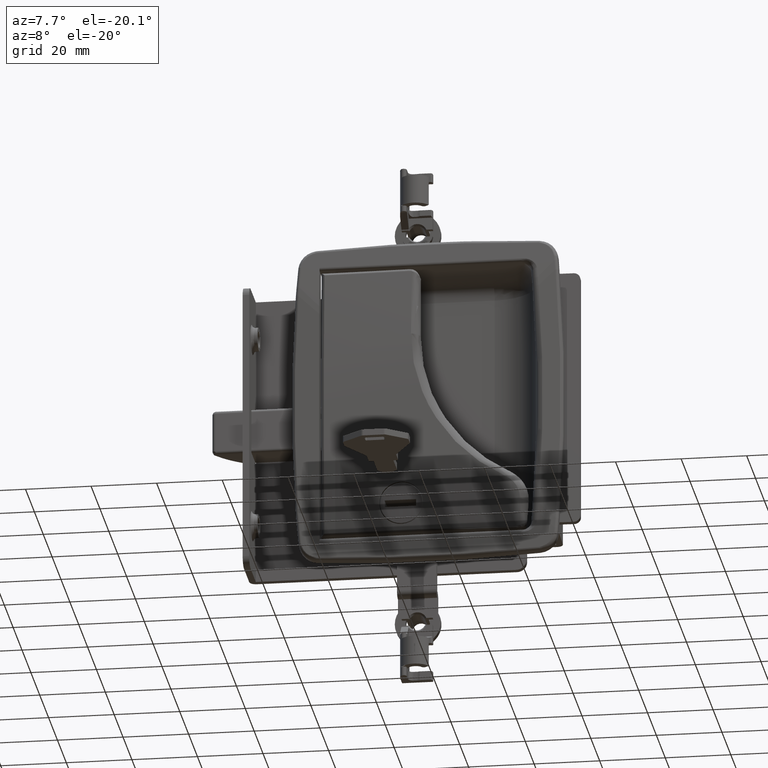
[diagram: clean part render]
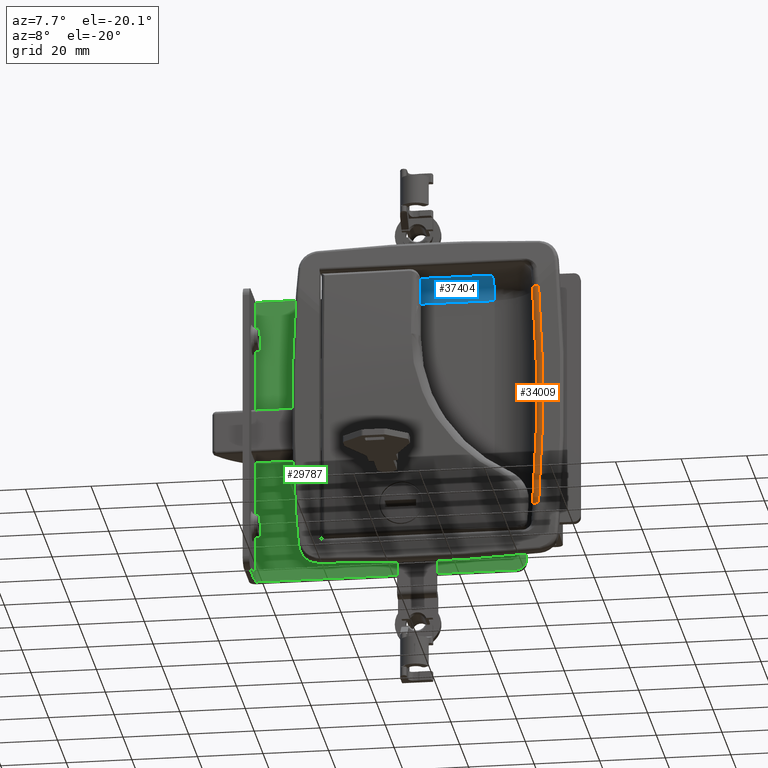
[diagram: same view with three faces highlighted in distinct colors, each labeled with its STEP entity id]
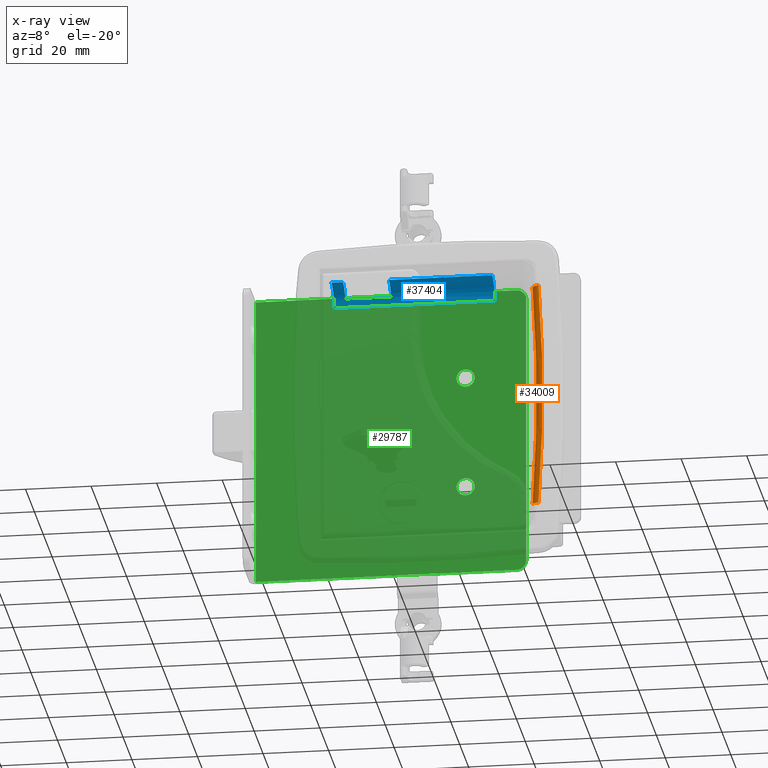
[diagram: x-ray of the same camera — body ghosted, the three highlighted faces saturated]
A machine part, auxiliary view with three faces highlighted in distinct colors.
The next image is the same camera in x-ray (body ghosted, the three faces saturated) — at least one of them is partly hidden behind the body in this view.
Their STEP definitions:

[orange] entity #34009 — the highlighted face is a freeform B-spline surface patch.
#33879=CARTESIAN_POINT('',(31.782126407912500,-30.614120764565900,34.878717808883003));
#33880=VERTEX_POINT('',#33879);
#33881=CARTESIAN_POINT('',(33.874876980734562,-32.611736803129652,35.018231881355803));
#33882=VERTEX_POINT('',#33881);
#33883=CARTESIAN_POINT('',(31.782126407912500,-30.614120764565900,34.878717808883003));
#33884=CARTESIAN_POINT('',(31.781894864028590,-30.884082462623741,34.877779072678663));
#33885=CARTESIAN_POINT('',(31.879180858453740,-31.356188596252800,34.882968690491118));
#33886=CARTESIAN_POINT('',(32.230178816195831,-31.921231894112641,34.905582124973037));
#33887=CARTESIAN_POINT('',(32.637989609936582,-32.281858589305990,34.932866888663924));
#33888=CARTESIAN_POINT('',(33.181714603839239,-32.558745499522857,34.969941941549628));
#33889=CARTESIAN_POINT('',(33.605888926483303,-32.625229594215547,34.999376142699496));
#33890=CARTESIAN_POINT('',(33.874876980734562,-32.611736803129652,35.018231881355803));
#33891=B_SPLINE_CURVE_WITH_KNOTS('',3,(#33883,#33884,#33885,#33886,#33887,#33888,#33889,#33890),.UNSPECIFIED.,.F.,.U.,(4,1,1,1,1,4),(0.000000333148975,0.809775829468428,1.417120800437435,1.973816289536203,2.429326822107407,3.239102318427517),.UNSPECIFIED.);
#33892=EDGE_CURVE('',#33880,#33882,#33891,.T.);
#33912=CARTESIAN_POINT('',(31.757733078547112,-30.600821732468276,35.227555349277630));
#33913=CARTESIAN_POINT('',(31.765863039972722,-30.600422756420897,35.111292591366528));
#33914=CARTESIAN_POINT('',(31.773993000708526,-30.600023780407323,34.995029843319500));
#33915=CARTESIAN_POINT('',(32.595115500203036,-30.559727376508832,23.252542840412893));
#33916=CARTESIAN_POINT('',(33.000116780710513,-30.538847907660045,11.626292120056570));
#33917=CARTESIAN_POINT('',(33.000080003498582,-30.538849773486223,-11.626182757576451));
#33918=CARTESIAN_POINT('',(32.595041945764741,-30.559731106623261,-23.252432193454673));
#33919=CARTESIAN_POINT('',(31.773882302008413,-30.600029211711128,-34.994916592511657));
#33920=CARTESIAN_POINT('',(31.765751973505228,-30.600428204568228,-35.111179314789240));
#33921=CARTESIAN_POINT('',(31.757621644312263,-30.600827197459211,-35.227442046931053));
#33922=CARTESIAN_POINT('',(31.757734885858010,-30.608058315501928,35.227529750894426));
#33923=CARTESIAN_POINT('',(31.765864818134897,-30.607659380405039,35.111267327439876));
#33924=CARTESIAN_POINT('',(31.773994750066379,-30.607260445325132,34.995004908925047));
#33925=CARTESIAN_POINT('',(32.595116114058868,-30.566968088669743,23.252525823425447));
#33926=CARTESIAN_POINT('',(33.000116780681275,-30.546090639515715,11.626283613736375));
#33927=CARTESIAN_POINT('',(33.000080003527835,-30.546092504954395,-11.626174250098989));
#33928=CARTESIAN_POINT('',(32.595042559727453,-30.566971818573037,-23.252415175352080));
#33929=CARTESIAN_POINT('',(31.773884051517989,-30.607265876080945,-34.994891657084423));
#33930=CARTESIAN_POINT('',(31.765753751820572,-30.607664828001038,-35.111154049828023));
#33931=CARTESIAN_POINT('',(31.757623451777718,-30.608063779938089,-35.227416447511381));
#33932=CARTESIAN_POINT('',(31.758261113539596,-32.715106067561599,35.220076369153176));
#33933=CARTESIAN_POINT('',(31.766382561910451,-32.714732093232101,35.103911282608451));
#33934=CARTESIAN_POINT('',(31.774504110095208,-32.714358114306393,34.987744768375954));
#33935=CARTESIAN_POINT('',(32.595294962052478,-32.676562551925151,23.247567893639125));
#33936=CARTESIAN_POINT('',(33.000116772159622,-32.656929320785295,11.623804511916383));
#33937=CARTESIAN_POINT('',(33.000080012050049,-32.656931073291602,-11.623694811002416));
#33938=CARTESIAN_POINT('',(32.595221438850004,-32.676566056929502,-23.247456921050663));
#33939=CARTESIAN_POINT('',(31.774393455684788,-32.714363208490667,-34.987631216427637));
#33940=CARTESIAN_POINT('',(31.766271540147770,-32.714737203138533,-35.103797704379552));
#33941=CARTESIAN_POINT('',(31.758149724430236,-32.715111193189955,-35.219962764629017));
#33942=CARTESIAN_POINT('',(33.857527520980526,-32.612584899746544,35.368924063883370));
#33943=CARTESIAN_POINT('',(33.865711958393241,-32.612184851253041,35.252194981271025));
#33944=CARTESIAN_POINT('',(33.873896395459624,-32.611784802776491,35.135465903598309));
#33945=CARTESIAN_POINT('',(34.700522773472663,-32.571379992948273,23.345854241498877));
#33946=CARTESIAN_POINT('',(35.108238655436978,-32.550444374911201,11.672946124043206));
#33947=CARTESIAN_POINT('',(35.108201632892090,-32.550446245342997,-11.672843108742027));
#33948=CARTESIAN_POINT('',(34.700448726064877,-32.571383734063062,-23.345749936704003));
#33949=CARTESIAN_POINT('',(33.873784954755756,-32.611790248680300,-35.135358984548219));
#33950=CARTESIAN_POINT('',(33.865600147457329,-32.612190314036049,-35.252088036345938));
#33951=CARTESIAN_POINT('',(33.857415339812547,-32.612590379408708,-35.368817093083308));
#33952=CARTESIAN_POINT('',(33.864708573823499,-32.612234201082970,35.369433233733218));
#33953=CARTESIAN_POINT('',(33.872893182273231,-32.611834065566846,35.252702218696292));
#33954=CARTESIAN_POINT('',(33.881077790031370,-32.611433930084544,35.135971213523476));
#33955=CARTESIAN_POINT('',(34.707719629381295,-32.571020419643702,23.346190239664733));
#33956=CARTESIAN_POINT('',(35.115443166048976,-32.550080462402811,11.673114065597661));
#33957=CARTESIAN_POINT('',(35.115406142607206,-32.550082333237611,-11.673011073144584));
#33958=CARTESIAN_POINT('',(34.707645580738863,-32.571024161537792,-23.346085957690153));
#33959=CARTESIAN_POINT('',(33.880966347241127,-32.611439377162000,-35.135864317204998));
#33960=CARTESIAN_POINT('',(33.872781369241522,-32.611839529527437,-35.252595296504545));
#33961=CARTESIAN_POINT('',(33.864596390550282,-32.612239681926695,-35.369326285668265));
#33969=(BOUNDED_SURFACE()B_SPLINE_SURFACE(3,2,((#33912,#33922,#33932,#33942,#33952),(#33913,#33923,#33933,#33943,#33953),(#33914,#33924,#33934,#33944,#33954),(#33915,#33925,#33935,#33945,#33955),(#33916,#33926,#33936,#33946,#33956),(#33917,#33927,#33937,#33947,#33957),(#33918,#33928,#33938,#33948,#33958),(#33919,#33929,#33939,#33949,#33959),(#33920,#33930,#33940,#33950,#33960),(#33921,#33931,#33941,#33951,#33961)),.UNSPECIFIED.,.F.,.F.,.U.)B_SPLINE_SURFACE_WITH_KNOTS((4,2,2,2,4),(3,1,1,3),(0.0,0.351054854494946,35.456541088595472,70.562027322695997,70.913082177209404),(0.0,0.017230395234583,3.449360058423087,3.466521053357058),.UNSPECIFIED.)GEOMETRIC_REPRESENTATION_ITEM()RATIONAL_B_SPLINE_SURFACE(((1.003115718963629,1.001557859481814,0.689689315548435,1.001551584761190,1.003103169522379),(1.003115761517329,1.001557880758665,0.689685077403687,1.001551605952342,1.003103211904683),(1.003115804071030,1.001557902035515,0.689680839258939,1.001551627143493,1.003103254286986),(1.003120101994886,1.001560050997443,0.689252786629928,1.001553767449868,1.003107534899736),(1.003122237279550,1.001561118639775,0.689040122505518,1.001554830791968,1.003109661583935),(1.003122237279550,1.001561118639775,0.689040122505518,1.001554830791968,1.003109661583935),(1.003120101462570,1.001560050731285,0.689252839646093,1.001553767184782,1.003107534369564),(1.003115803493260,1.001557901746630,0.689680896802018,1.001551626855772,1.003103253711544),(1.003115760939110,1.001557880469555,0.689685134991587,1.001551605664396,1.003103211328792),(1.003115718384959,1.001557859192480,0.689689373181156,1.001551584473020,1.003103168946040)))REPRESENTATION_ITEM('')SURFACE());
#33970=CARTESIAN_POINT('',(31.782016077280101,-30.614126177927400,-34.878604581789197));
#33971=VERTEX_POINT('',#33970);
#33972=CARTESIAN_POINT('',(33.874765912351599,-32.611742230980703,-35.018124965368649));
#33973=VERTEX_POINT('',#33972);
#33974=CARTESIAN_POINT('',(31.782016077280101,-30.614126177927400,-34.878604581789197));
#33975=CARTESIAN_POINT('',(31.782018567871560,-30.799685201004799,-34.877970614888071));
#33976=CARTESIAN_POINT('',(31.841023640632759,-31.221476959691628,-34.880655414839971));
#33977=CARTESIAN_POINT('',(32.089237416559762,-31.729231649051339,-34.896277909726543));
#33978=CARTESIAN_POINT('',(32.474616456101032,-32.157367141575719,-34.921764543587557));
#33979=CARTESIAN_POINT('',(32.843910727555787,-32.401957433099277,-34.946753619559637));
#33980=CARTESIAN_POINT('',(33.334368600425549,-32.584800640239877,-34.980426752069967));
#33981=CARTESIAN_POINT('',(33.656242009024517,-32.622573746252549,-35.002806450725451));
#33982=CARTESIAN_POINT('',(33.874765912351599,-32.611742230980703,-35.018124965368649));
#33983=B_SPLINE_CURVE_WITH_KNOTS('',3,(#33974,#33975,#33976,#33977,#33978,#33979,#33980,#33981,#33982),.UNSPECIFIED.,.F.,.U.,(4,1,1,1,1,1,4),(0.000000333147387,0.556716542780927,1.265286237955772,1.670117247749265,2.277482662979206,2.581170504776201,3.239102000787983),.UNSPECIFIED.);
#33984=EDGE_CURVE('',#33971,#33973,#33983,.T.);
#33985=ORIENTED_EDGE('',*,*,#33984,.T.);
#33986=CARTESIAN_POINT('',(33.874876980734562,-32.611736803129652,35.018231881355803));
#33987=CARTESIAN_POINT('',(34.284090715167210,-32.591738721478293,29.181868160271669));
#33988=CARTESIAN_POINT('',(34.896970149765657,-32.561157843210012,17.509141044805538));
#33989=CARTESIAN_POINT('',(35.203018654547677,-32.545635908212823,0.000051346525180));
#33990=CARTESIAN_POINT('',(34.896914157217402,-32.561160373405272,-17.509037378544871));
#33991=CARTESIAN_POINT('',(34.283998157478003,-32.591743305590633,-29.181762545342309));
#33992=CARTESIAN_POINT('',(33.874765912351599,-32.611742230980703,-35.018124965368649));
#33993=B_SPLINE_CURVE_WITH_KNOTS('',3,(#33986,#33987,#33988,#33989,#33990,#33991,#33992),.UNSPECIFIED.,.F.,.U.,(4,1,1,1,4),(0.0,0.250000000000000,0.500000000000000,0.750000000000000,1.0),.UNSPECIFIED.);
#33994=EDGE_CURVE('',#33882,#33973,#33993,.T.);
#33995=ORIENTED_EDGE('',*,*,#33994,.F.);
#33996=ORIENTED_EDGE('',*,*,#33892,.F.);
#33997=CARTESIAN_POINT('',(31.782016077280101,-30.614126177927400,-34.878604581789197));
#33998=CARTESIAN_POINT('',(32.188530068118489,-30.594180626119080,-29.065495027056581));
#33999=CARTESIAN_POINT('',(32.797375333539591,-30.563679588622701,-17.439275593920101));
#34000=CARTESIAN_POINT('',(33.101446129976033,-30.548196281243150,0.000054521661077));
#34001=CARTESIAN_POINT('',(32.797430044920581,-30.563676516703829,17.439385601416699));
#34002=CARTESIAN_POINT('',(32.188622010528583,-30.594176054264420,29.065606965170261));
#34003=CARTESIAN_POINT('',(31.782126407912500,-30.614120764565900,34.878717808883003));
#34004=B_SPLINE_CURVE_WITH_KNOTS('',3,(#33997,#33998,#33999,#34000,#34001,#34002,#34003),.UNSPECIFIED.,.F.,.U.,(4,1,1,1,4),(0.0,0.250000000000000,0.500000000000000,0.750000000000000,1.0),.UNSPECIFIED.);
#34005=EDGE_CURVE('',#33971,#33880,#34004,.T.);
#34006=ORIENTED_EDGE('',*,*,#34005,.F.);
#34007=EDGE_LOOP('',(#33985,#33995,#33996,#34006));
#34008=FACE_OUTER_BOUND('',#34007,.T.);
#34009=ADVANCED_FACE('',(#34008),#33969,.T.);

[blue] entity #37404 — the highlighted face is a freeform B-spline surface patch.
#37304=CARTESIAN_POINT('',(-32.225054412782477,-20.461716324192022,43.494289329491153));
#37305=CARTESIAN_POINT('',(19.257857284401450,-20.461716324192022,43.494289329491153));
#37306=CARTESIAN_POINT('',(-32.225054412782484,-13.743638370679678,43.787606947474373));
#37307=CARTESIAN_POINT('',(19.257857284401453,-13.743638370679678,43.787606947474373));
#37308=CARTESIAN_POINT('',(-32.225054412782484,-14.214742523254632,37.079651410061018));
#37309=CARTESIAN_POINT('',(19.257857284401453,-14.214742523254632,37.079651410061018));
#37317=(BOUNDED_SURFACE()B_SPLINE_SURFACE(1,2,((#37304,#37306,#37308),(#37305,#37307,#37309)),.UNSPECIFIED.,.F.,.F.,.U.)B_SPLINE_SURFACE_WITH_KNOTS((2,2),(3,3),(0.0,51.482911697183937),(0.0,10.750455284418120),.UNSPECIFIED.)GEOMETRIC_REPRESENTATION_ITEM()RATIONAL_B_SPLINE_SURFACE(((1.0,0.664513897122593,0.996233564052403),(1.0,0.664513897122593,0.996233564052403)))REPRESENTATION_ITEM('')SURFACE());
#37318=CARTESIAN_POINT('',(-31.0,-14.199999999999999,37.500000000000000));
#37319=VERTEX_POINT('',#37318);
#37320=CARTESIAN_POINT('',(-31.0,-20.199999999999999,43.500000000000000));
#37321=VERTEX_POINT('',#37320);
#37322=CARTESIAN_POINT('',(-31.0,-14.199999999999999,37.500000000000000));
#37323=CARTESIAN_POINT('',(-31.000000000000021,-14.199728251642281,38.113621233621153));
#37324=CARTESIAN_POINT('',(-30.999999999999950,-14.386062340086330,39.316113798223761));
#37325=CARTESIAN_POINT('',(-31.000000000000050,-15.104214037720320,40.787727624338423));
#37326=CARTESIAN_POINT('',(-30.999999999999940,-15.968653909058339,41.801940038035220));
#37327=CARTESIAN_POINT('',(-30.999999999999869,-16.772034911657649,42.453048144254652));
#37328=CARTESIAN_POINT('',(-31.000000000000639,-17.601286720186209,42.936354608749610));
#37329=CARTESIAN_POINT('',(-30.999999999999609,-18.727483032775531,43.370849119208842));
#37330=CARTESIAN_POINT('',(-31.000000000000270,-19.635468547866950,43.500224395093653));
#37331=CARTESIAN_POINT('',(-31.0,-20.199999999999999,43.500000000000000));
#37332=B_SPLINE_CURVE_WITH_KNOTS('',3,(#37322,#37323,#37324,#37325,#37326,#37327,#37328,#37329,#37330,#37331),.UNSPECIFIED.,.F.,.U.,(4,1,1,1,1,1,1,4),(0.000000173653319,1.840788138211531,3.607974898320732,4.859641520650031,5.816868614348634,6.700460490495598,7.731316819215510,9.424837097263424),.UNSPECIFIED.);
#37333=EDGE_CURVE('',#37319,#37321,#37332,.T.);
#37334=ORIENTED_EDGE('',*,*,#37333,.F.);
#37335=CARTESIAN_POINT('',(18.002176511299400,-14.199999999999999,37.500000000000000));
#37336=VERTEX_POINT('',#37335);
#37337=CARTESIAN_POINT('',(18.002176511299400,-14.199999999999999,37.500000000000000));
#37338=CARTESIAN_POINT('',(-31.0,-14.199999999999999,37.500000000000000));
#37339=QUASI_UNIFORM_CURVE('',1,(#37337,#37338),.UNSPECIFIED.,.F.,.U.);
#37340=EDGE_CURVE('',#37336,#37319,#37339,.T.);
#37341=ORIENTED_EDGE('',*,*,#37340,.F.);
#37342=CARTESIAN_POINT('',(18.002176511299400,-20.199999999999999,43.500000000000000));
#37343=VERTEX_POINT('',#37342);
#37344=CARTESIAN_POINT('',(18.002176511299400,-14.199999999999999,37.500000000000000));
#37345=CARTESIAN_POINT('',(18.002176511299400,-14.199728252037820,38.113621233852008));
#37346=CARTESIAN_POINT('',(18.002176511299400,-14.386062337492181,39.316113796709331));
#37347=CARTESIAN_POINT('',(18.002176511299439,-15.104214045254560,40.787727628736171));
#37348=CARTESIAN_POINT('',(18.002176511299350,-15.968653895676800,41.801940030253817));
#37349=CARTESIAN_POINT('',(18.002176511299339,-16.772034909962571,42.453048142346042));
#37350=CARTESIAN_POINT('',(18.002176511299780,-17.601286830185419,42.936354677976013));
#37351=CARTESIAN_POINT('',(18.002176511299162,-18.727482721819879,43.370848939787827));
#37352=CARTESIAN_POINT('',(18.002176511299549,-19.635468979204720,43.500224652217419));
#37353=CARTESIAN_POINT('',(18.002176511299400,-20.199999999999999,43.500000000000000));
#37354=B_SPLINE_CURVE_WITH_KNOTS('',3,(#37344,#37345,#37346,#37347,#37348,#37349,#37350,#37351,#37352,#37353),.UNSPECIFIED.,.F.,.U.,(4,1,1,1,1,1,1,4),(0.000000173653319,1.840788138211531,3.607974898320732,4.859641520650031,5.816868614348634,6.700460490495598,7.731316819215510,9.424837097263424),.UNSPECIFIED.);
#37355=EDGE_CURVE('',#37336,#37343,#37354,.T.);
#37356=ORIENTED_EDGE('',*,*,#37355,.T.);
#37357=CARTESIAN_POINT('',(-13.500000000000000,-20.199999999999999,43.500000000000000));
#37358=VERTEX_POINT('',#37357);
#37359=CARTESIAN_POINT('',(-13.500000000000000,-20.199999999999999,43.500000000000000));
#37360=CARTESIAN_POINT('',(18.002176511299400,-20.199999999999999,43.500000000000000));
#37361=QUASI_UNIFORM_CURVE('',1,(#37359,#37360),.UNSPECIFIED.,.F.,.U.);
#37362=EDGE_CURVE('',#37358,#37343,#37361,.T.);
#37363=ORIENTED_EDGE('',*,*,#37362,.F.);
#37364=CARTESIAN_POINT('',(-13.500000000000000,-14.745643942682239,40.0));
#37365=VERTEX_POINT('',#37364);
#37366=CARTESIAN_POINT('',(-13.500000000000000,-14.745643942682239,40.0));
#37367=CARTESIAN_POINT('',(-13.499999999999980,-15.027542257985660,40.616099420307442));
#37368=CARTESIAN_POINT('',(-13.500000000000050,-15.701266448883031,41.601390591199589));
#37369=CARTESIAN_POINT('',(-13.499999999999959,-16.821309501005590,42.502282343163721));
#37370=CARTESIAN_POINT('',(-13.499999999999970,-17.861426576768480,43.057440134314668));
#37371=CARTESIAN_POINT('',(-13.500000000000060,-18.916372659512280,43.408071190976351));
#37372=CARTESIAN_POINT('',(-13.499999999999940,-19.772116915527381,43.500071270791992));
#37373=CARTESIAN_POINT('',(-13.500000000000000,-20.199999999999999,43.500000000000000));
#37374=B_SPLINE_CURVE_WITH_KNOTS('',3,(#37366,#37367,#37368,#37369,#37370,#37371,#37372,#37373),.UNSPECIFIED.,.F.,.U.,(4,1,1,1,1,4),(0.000000071340254,2.032478324552179,3.530063246409965,4.278881956897644,5.562561888967871,6.846216031469870),.UNSPECIFIED.);
#37375=EDGE_CURVE('',#37365,#37358,#37374,.T.);
#37376=ORIENTED_EDGE('',*,*,#37375,.F.);
#37377=CARTESIAN_POINT('',(-27.500000000000000,-14.745643942682239,40.0));
#37378=VERTEX_POINT('',#37377);
#37379=CARTESIAN_POINT('',(-27.500000000000000,-14.745643942682239,40.0));
#37380=CARTESIAN_POINT('',(-13.500000000000000,-14.745643942682239,40.0));
#37381=QUASI_UNIFORM_CURVE('',1,(#37379,#37380),.UNSPECIFIED.,.F.,.U.);
#37382=EDGE_CURVE('',#37378,#37365,#37381,.T.);
#37383=ORIENTED_EDGE('',*,*,#37382,.F.);
#37384=CARTESIAN_POINT('',(-27.500000000000000,-20.199999999999999,43.500000000000000));
#37385=VERTEX_POINT('',#37384);
#37386=CARTESIAN_POINT('',(-27.500000000000000,-20.199999999999999,43.500000000000000));
#37387=CARTESIAN_POINT('',(-27.500000000000021,-19.736455142076881,43.500086545859993));
#37388=CARTESIAN_POINT('',(-27.500000000000011,-18.845074497769190,43.396190520664099));
#37389=CARTESIAN_POINT('',(-27.500000000000011,-17.593594411750171,42.955296247123563));
#37390=CARTESIAN_POINT('',(-27.499999999999989,-16.433693867264338,42.239947126276313));
#37391=CARTESIAN_POINT('',(-27.499999999999979,-15.441786767794440,41.249870191191022));
#37392=CARTESIAN_POINT('',(-27.500000000000028,-14.938719447106831,40.421415157734920));
#37393=CARTESIAN_POINT('',(-27.500000000000000,-14.745643942682239,40.0));
#37394=B_SPLINE_CURVE_WITH_KNOTS('',3,(#37386,#37387,#37388,#37389,#37390,#37391,#37392,#37393),.UNSPECIFIED.,.F.,.U.,(4,1,1,1,1,4),(0.000000071337872,1.390629798191481,2.674316526128028,3.957939251232735,5.455586304616755,6.846216031469917),.UNSPECIFIED.);
#37395=EDGE_CURVE('',#37385,#37378,#37394,.T.);
#37396=ORIENTED_EDGE('',*,*,#37395,.F.);
#37397=CARTESIAN_POINT('',(-31.0,-20.199999999999999,43.500000000000000));
#37398=CARTESIAN_POINT('',(-27.500000000000000,-20.199999999999999,43.500000000000000));
#37399=QUASI_UNIFORM_CURVE('',1,(#37397,#37398),.UNSPECIFIED.,.F.,.U.);
#37400=EDGE_CURVE('',#37321,#37385,#37399,.T.);
#37401=ORIENTED_EDGE('',*,*,#37400,.F.);
#37402=EDGE_LOOP('',(#37334,#37341,#37356,#37363,#37376,#37383,#37396,#37401));
#37403=FACE_OUTER_BOUND('',#37402,.T.);
#37404=ADVANCED_FACE('',(#37403),#37317,.F.);

[green] entity #29787 — the highlighted face is a freeform B-spline surface patch.
#23500=CARTESIAN_POINT('',(9.599778418271164,-2.000000000011266,-15.723908879610050));
#23501=VERTEX_POINT('',#23500);
#23502=CARTESIAN_POINT('',(7.499999999999770,-2.0,-14.749700000000001));
#23503=VERTEX_POINT('',#23502);
#23504=CARTESIAN_POINT('',(9.599778418271164,-2.000000000011266,-15.723908879610050));
#23505=CARTESIAN_POINT('',(9.423080071847066,-2.000000000010317,-15.514784384190021));
#23506=CARTESIAN_POINT('',(9.025461033746451,-2.000000000008184,-15.166670028230509));
#23507=CARTESIAN_POINT('',(8.296350673195297,-2.000000000004282,-14.828367659404099));
#23508=CARTESIAN_POINT('',(7.773778140559589,-2.000000000001463,-14.749587160675770));
#23509=CARTESIAN_POINT('',(7.499999999999770,-2.0,-14.749700000000001));
#23510=B_SPLINE_CURVE_WITH_KNOTS('',3,(#23504,#23505,#23506,#23507,#23508,#23509),.UNSPECIFIED.,.F.,.U.,(4,1,1,4),(0.000000049208932,0.821324819515233,1.567953194549354,2.389277964783682),.UNSPECIFIED.);
#23511=EDGE_CURVE('',#23501,#23503,#23510,.T.);
#23513=CARTESIAN_POINT('',(4.750000000000989,-2.0,-17.499702587990580));
#23514=VERTEX_POINT('',#23513);
#23515=CARTESIAN_POINT('',(7.499999999999770,-2.0,-14.749700000000001));
#23516=CARTESIAN_POINT('',(7.207507553550121,-2.000000000000001,-14.749549545957530));
#23517=CARTESIAN_POINT('',(6.712640232423540,-1.999999999999998,-14.829427717601609));
#23518=CARTESIAN_POINT('',(6.033502226651113,-1.999999999999999,-15.140520711697340));
#23519=CARTESIAN_POINT('',(5.554907793116993,-2.000000000000005,-15.523523718248750));
#23520=CARTESIAN_POINT('',(5.145713518715421,-1.999999999999996,-16.034840220584019));
#23521=CARTESIAN_POINT('',(4.836948363174272,-2.000000000000001,-16.667333154143542));
#23522=CARTESIAN_POINT('',(4.749855479191512,-2.0,-17.207209987395839));
#23523=CARTESIAN_POINT('',(4.750000000000989,-2.0,-17.499702587990580));
#23524=B_SPLINE_CURVE_WITH_KNOTS('',3,(#23515,#23516,#23517,#23518,#23519,#23520,#23521,#23522,#23523),.UNSPECIFIED.,.F.,.U.,(4,1,1,1,1,1,4),(0.000000235357179,0.877447612058197,1.484944863899620,2.227364861145336,2.699843741548231,3.442352379716247,4.319799755604054),.UNSPECIFIED.);
#23525=EDGE_CURVE('',#23503,#23514,#23524,.T.);
#23527=CARTESIAN_POINT('',(7.499999999999770,-2.0,-20.249700000000001));
#23528=VERTEX_POINT('',#23527);
#23529=CARTESIAN_POINT('',(4.750000000000989,-2.0,-17.499702587990580));
#23530=CARTESIAN_POINT('',(4.749993430650576,-2.000000000000001,-17.679674255615179));
#23531=CARTESIAN_POINT('',(4.792041759360329,-2.0,-18.107170290416398));
#23532=CARTESIAN_POINT('',(4.998848529230805,-2.000000000000001,-18.708296494467032));
#23533=CARTESIAN_POINT('',(5.393863379393230,-2.0,-19.315500954540010));
#23534=CARTESIAN_POINT('',(5.899368531938990,-1.999999999999999,-19.773700700055191));
#23535=CARTESIAN_POINT('',(6.622769030811460,-2.000000000000001,-20.148981830860109));
#23536=CARTESIAN_POINT('',(7.162470775422212,-2.0,-20.249979316470039));
#23537=CARTESIAN_POINT('',(7.499999999999770,-2.0,-20.249700000000001));
#23538=B_SPLINE_CURVE_WITH_KNOTS('',3,(#23529,#23530,#23531,#23532,#23533,#23534,#23535,#23536,#23537),.UNSPECIFIED.,.F.,.U.,(4,1,1,1,1,1,4),(0.000000238901056,0.539943618717485,1.282451755398433,1.889949876998556,2.699841917321896,3.307346453603859,4.319796838262708),.UNSPECIFIED.);
#23539=EDGE_CURVE('',#23514,#23528,#23538,.T.);
#23541=CARTESIAN_POINT('',(9.392974638647981,-2.0,-19.494479051379908));
#23542=VERTEX_POINT('',#23541);
#23543=CARTESIAN_POINT('',(7.499999999999770,-2.0,-20.249700000000001));
#23544=CARTESIAN_POINT('',(7.826263554981598,-1.999999999999997,-20.249951064258081));
#23545=CARTESIAN_POINT('',(8.522020938642349,-2.000000000000007,-20.124346349325911));
#23546=CARTESIAN_POINT('',(9.125025995519760,-1.999999999999999,-19.749316332272869));
#23547=CARTESIAN_POINT('',(9.392974638647981,-2.0,-19.494479051379908));
#23548=B_SPLINE_CURVE_WITH_KNOTS('',3,(#23543,#23544,#23545,#23546,#23547),.UNSPECIFIED.,.F.,.U.,(4,1,4),(0.000000058086645,0.978717669609080,2.087898830923840),.UNSPECIFIED.);
#23549=EDGE_CURVE('',#23528,#23542,#23548,.T.);
#23629=CARTESIAN_POINT('',(10.249999999998550,-2.0,-17.499697412009422));
#23630=VERTEX_POINT('',#23629);
#23631=CARTESIAN_POINT('',(10.249999999998550,-2.0,-17.499697412009422));
#23632=CARTESIAN_POINT('',(10.250154996488339,-2.000000000001913,-17.198034514905000));
#23633=CARTESIAN_POINT('',(10.143043135533050,-2.000000000005996,-16.554671766885392));
#23634=CARTESIAN_POINT('',(9.820788401209979,-2.000000000009612,-15.984760065569059));
#23635=CARTESIAN_POINT('',(9.599778418271164,-2.000000000011266,-15.723908879610050));
#23636=B_SPLINE_CURVE_WITH_KNOTS('',3,(#23631,#23632,#23633,#23634,#23635),.UNSPECIFIED.,.F.,.U.,(4,1,4),(0.000000053044280,0.904949436302322,1.930521909175878),.UNSPECIFIED.);
#23637=EDGE_CURVE('',#23630,#23501,#23636,.T.);
#23659=CARTESIAN_POINT('',(9.392974638647981,-2.0,-19.494479051379908));
#23660=CARTESIAN_POINT('',(9.680138147818230,-2.000000000000002,-19.222786536774919));
#23661=CARTESIAN_POINT('',(10.106455119182090,-1.999999999999998,-18.592116529348989));
#23662=CARTESIAN_POINT('',(10.250341355649811,-2.000000000000001,-17.848477903111640));
#23663=CARTESIAN_POINT('',(10.249999999998550,-2.0,-17.499697412009422));
#23664=B_SPLINE_CURVE_WITH_KNOTS('',3,(#23659,#23660,#23661,#23662,#23663),.UNSPECIFIED.,.F.,.U.,(4,1,4),(0.000000056577864,1.185686681754036,2.231901906835335),.UNSPECIFIED.);
#23665=EDGE_CURVE('',#23542,#23630,#23664,.T.);
#23696=CARTESIAN_POINT('',(9.599778418271164,-2.000000000011266,19.275791120389950));
#23697=VERTEX_POINT('',#23696);
#23698=CARTESIAN_POINT('',(7.499999999999770,-2.0,20.250000000000000));
#23699=VERTEX_POINT('',#23698);
#23700=CARTESIAN_POINT('',(9.599778418271164,-2.000000000011266,19.275791120389950));
#23701=CARTESIAN_POINT('',(9.423087548619309,-2.000000000010324,19.484933036372968));
#23702=CARTESIAN_POINT('',(9.101165328172622,-2.000000000008585,19.766646713108120));
#23703=CARTESIAN_POINT('',(8.395658838523643,-2.000000000004810,20.141886631791849));
#23704=CARTESIAN_POINT('',(7.873413076349090,-2.000000000002002,20.250486128613140));
#23705=CARTESIAN_POINT('',(7.499999999999770,-2.0,20.250000000000000));
#23706=B_SPLINE_CURVE_WITH_KNOTS('',3,(#23700,#23701,#23702,#23703,#23704,#23705),.UNSPECIFIED.,.F.,.U.,(4,1,1,4),(0.000000049208656,0.821324819514983,1.269297857588592,2.389277964783692),.UNSPECIFIED.);
#23707=EDGE_CURVE('',#23697,#23699,#23706,.T.);
#23709=CARTESIAN_POINT('',(4.750000000000989,-2.0,17.499997412009421));
#23710=VERTEX_POINT('',#23709);
#23711=CARTESIAN_POINT('',(7.499999999999770,-2.0,20.250000000000000));
#23712=CARTESIAN_POINT('',(7.207502461676254,-2.000000000000004,20.250158025136152));
#23713=CARTESIAN_POINT('',(6.735147593369746,-1.999999999999997,20.173887506671480));
#23714=CARTESIAN_POINT('',(6.156467562549572,-1.999999999999999,19.917299943608690));
#23715=CARTESIAN_POINT('',(5.653626956522855,-2.000000000000011,19.572454793617570));
#23716=CARTESIAN_POINT('',(5.256582298243440,-1.999999999999985,19.134317147192590));
#23717=CARTESIAN_POINT('',(4.864543118682922,-2.000000000000019,18.422094153949519));
#23718=CARTESIAN_POINT('',(4.749469684857757,-1.999999999999998,17.882585791773771));
#23719=CARTESIAN_POINT('',(4.750000000000989,-2.0,17.499997412009421));
#23720=B_SPLINE_CURVE_WITH_KNOTS('',3,(#23711,#23712,#23713,#23714,#23715,#23716,#23717,#23718,#23719),.UNSPECIFIED.,.F.,.U.,(4,1,1,1,1,1,4),(0.000000235358634,0.877447612059124,1.417436020827118,1.889951152203333,2.699843741548375,3.172351064769249,4.319799755604052),.UNSPECIFIED.);
#23721=EDGE_CURVE('',#23699,#23710,#23720,.T.);
#23723=CARTESIAN_POINT('',(7.499999999999770,-2.0,14.750000000000000));
#23724=VERTEX_POINT('',#23723);
#23725=CARTESIAN_POINT('',(4.750000000000989,-2.0,17.499997412009421));
#23726=CARTESIAN_POINT('',(4.749699756502971,-1.999999999999999,17.162474478204171));
#23727=CARTESIAN_POINT('',(4.850696958779080,-2.000000000000002,16.622728546565209));
#23728=CARTESIAN_POINT('',(5.173971877038172,-1.999999999999999,15.999886789821529));
#23729=CARTESIAN_POINT('',(5.526715693927850,-1.999999999999999,15.559131152818370));
#23730=CARTESIAN_POINT('',(5.994320426950237,-2.000000000000009,15.165595765983330));
#23731=CARTESIAN_POINT('',(6.667639237335955,-1.999999999999980,14.836955622438820));
#23732=CARTESIAN_POINT('',(7.207506118379697,-2.000000000000020,14.749854134695910));
#23733=CARTESIAN_POINT('',(7.499999999999770,-2.0,14.750000000000000));
#23734=B_SPLINE_CURVE_WITH_KNOTS('',3,(#23725,#23726,#23727,#23728,#23729,#23730,#23731,#23732,#23733),.UNSPECIFIED.,.F.,.U.,(4,1,1,1,1,1,4),(0.000000238901785,1.012450622720358,1.619955159290957,2.092433719336195,2.699841917322345,3.442350053798344,4.319796838262680),.UNSPECIFIED.);
#23735=EDGE_CURVE('',#23710,#23724,#23734,.T.);
#23737=CARTESIAN_POINT('',(9.392974638647981,-2.0,15.505220948620090));
#23738=VERTEX_POINT('',#23737);
#23739=CARTESIAN_POINT('',(7.499999999999770,-2.0,14.750000000000000));
#23740=CARTESIAN_POINT('',(7.695738235539381,-2.0,14.749973927632039));
#23741=CARTESIAN_POINT('',(8.108944032486219,-2.0,14.794288686319851));
#23742=CARTESIAN_POINT('',(8.771525184277230,-1.999999999999999,15.022755810594379));
#23743=CARTESIAN_POINT('',(9.187958220978405,-2.000000000000001,15.310508645319000));
#23744=CARTESIAN_POINT('',(9.392974638647981,-2.0,15.505220948620090));
#23745=B_SPLINE_CURVE_WITH_KNOTS('',3,(#23739,#23740,#23741,#23742,#23743,#23744),.UNSPECIFIED.,.F.,.U.,(4,1,1,4),(0.000000058087488,0.587225061659178,1.239672892012644,2.087898830923832),.UNSPECIFIED.);
#23746=EDGE_CURVE('',#23724,#23738,#23745,.T.);
#23827=CARTESIAN_POINT('',(10.249999999998550,-2.0,17.500002587990579));
#23828=VERTEX_POINT('',#23827);
#23829=CARTESIAN_POINT('',(10.249999999998550,-2.0,17.500002587990579));
#23830=CARTESIAN_POINT('',(10.250087821762540,-2.000000000001657,17.761426561173430));
#23831=CARTESIAN_POINT('',(10.157581673226190,-2.000000000005745,18.404905602483250));
#23832=CARTESIAN_POINT('',(9.846965327331821,-2.000000000009412,18.984316111144640));
#23833=CARTESIAN_POINT('',(9.599778418271164,-2.000000000011266,19.275791120389950));
#23834=B_SPLINE_CURVE_WITH_KNOTS('',3,(#23829,#23830,#23831,#23832,#23833),.UNSPECIFIED.,.F.,.U.,(4,1,4),(0.000000053044213,0.784286342319879,1.930521909175870),.UNSPECIFIED.);
#23835=EDGE_CURVE('',#23828,#23697,#23834,.T.);
#23857=CARTESIAN_POINT('',(9.392974638647981,-2.0,15.505220948620090));
#23858=CARTESIAN_POINT('',(9.680137750061061,-1.999999999999999,15.776912353041430));
#23859=CARTESIAN_POINT('',(10.106454436734870,-2.000000000000004,16.407583634354090));
#23860=CARTESIAN_POINT('',(10.250342129732180,-1.999999999999998,17.151222639714820));
#23861=CARTESIAN_POINT('',(10.249999999998550,-2.0,17.500002587990579));
#23862=B_SPLINE_CURVE_WITH_KNOTS('',3,(#23857,#23858,#23859,#23860,#23861),.UNSPECIFIED.,.F.,.U.,(4,1,4),(0.000000056577628,1.185686681754020,2.231901906835337),.UNSPECIFIED.);
#23863=EDGE_CURVE('',#23738,#23828,#23862,.T.);
#26588=CARTESIAN_POINT('',(-56.500000000000000,-2.0,7.0));
#26589=VERTEX_POINT('',#26588);
#26604=CARTESIAN_POINT('',(-56.500000000000000,-2.0,-6.999700000000000));
#26605=VERTEX_POINT('',#26604);
#26611=CARTESIAN_POINT('',(-56.500000000000000,-2.0,-6.999700000000000));
#26612=CARTESIAN_POINT('',(-56.500000000000000,-2.0,7.0));
#26613=QUASI_UNIFORM_CURVE('',1,(#26611,#26612),.UNSPECIFIED.,.F.,.U.);
#26614=EDGE_CURVE('',#26605,#26589,#26613,.T.);
#29546=CARTESIAN_POINT('',(23.001000000000001,-2.0,-44.999699999999997));
#29547=VERTEX_POINT('',#29546);
#29548=CARTESIAN_POINT('',(26.001000000000001,-2.0,-41.999699999999997));
#29549=VERTEX_POINT('',#29548);
#29550=CARTESIAN_POINT('',(23.001000000000001,-2.0,-44.999699999999997));
#29551=CARTESIAN_POINT('',(23.320099080881050,-2.0,-44.999896317543552));
#29552=CARTESIAN_POINT('',(23.835377854682559,-2.0,-44.916631237019480));
#29553=CARTESIAN_POINT('',(24.534358777441440,-1.999999999999999,-44.606828691720636));
#29554=CARTESIAN_POINT('',(25.050764777239291,-2.000000000000003,-44.223807887681083));
#29555=CARTESIAN_POINT('',(25.501810349490629,-1.999999999999998,-43.700915882513542));
#29556=CARTESIAN_POINT('',(25.886548839521222,-2.000000000000004,-42.981247382641087));
#29557=CARTESIAN_POINT('',(26.001343382511401,-1.999999999999996,-42.367906299303833));
#29558=CARTESIAN_POINT('',(26.001000000000001,-2.0,-41.999699999999997));
#29559=B_SPLINE_CURVE_WITH_KNOTS('',3,(#29550,#29551,#29552,#29553,#29554,#29555,#29556,#29557,#29558),.UNSPECIFIED.,.F.,.U.,(4,1,1,1,1,1,4),(0.000000209626745,0.957227994839911,1.546308973013461,2.282648068006679,2.871679973433287,3.608017489490688,4.712507233014024),.UNSPECIFIED.);
#29560=EDGE_CURVE('',#29547,#29549,#29559,.T.);
#29606=CARTESIAN_POINT('',(26.001000000000001,-2.0,42.0));
#29607=VERTEX_POINT('',#29606);
#29608=CARTESIAN_POINT('',(23.001000000000001,-2.0,45.0));
#29609=VERTEX_POINT('',#29608);
#29610=CARTESIAN_POINT('',(26.001000000000001,-2.0,42.0));
#29611=CARTESIAN_POINT('',(26.001344659441060,-2.0,42.368210412175181));
#29612=CARTESIAN_POINT('',(25.886529781235829,-2.0,42.981525756880217));
#29613=CARTESIAN_POINT('',(25.431965953237619,-2.000000000000004,43.832189965231287));
#29614=CARTESIAN_POINT('',(24.868486389896869,-1.999999999999988,44.395814115952639));
#29615=CARTESIAN_POINT('',(24.267440092850361,-2.000000000000019,44.735954466995999));
#29616=CARTESIAN_POINT('',(23.688173329452749,-1.999999999999976,44.943278716144810));
#29617=CARTESIAN_POINT('',(23.270985641321040,-2.000000000000017,45.000087219442683));
#29618=CARTESIAN_POINT('',(23.001000000000001,-2.0,45.0));
#29619=B_SPLINE_CURVE_WITH_KNOTS('',3,(#29610,#29611,#29612,#29613,#29614,#29615,#29616,#29617,#29618),.UNSPECIFIED.,.F.,.U.,(4,1,1,1,1,1,4),(0.000000209628944,1.104489953151609,1.840827469208539,2.871679973433485,3.460743464843767,3.902562484706922,4.712507233014012),.UNSPECIFIED.);
#29620=EDGE_CURVE('',#29607,#29609,#29619,.T.);
#29655=CARTESIAN_POINT('',(-56.500000000000000,-2.0,45.0));
#29656=VERTEX_POINT('',#29655);
#29657=CARTESIAN_POINT('',(-56.500000000000000,-2.0,45.0));
#29658=CARTESIAN_POINT('',(23.001000000000001,-2.0,45.0));
#29659=QUASI_UNIFORM_CURVE('',1,(#29657,#29658),.UNSPECIFIED.,.F.,.U.);
#29660=EDGE_CURVE('',#29656,#29609,#29659,.T.);
#29710=CARTESIAN_POINT('',(-56.500000000000000,-2.0,-44.999699999999997));
#29711=VERTEX_POINT('',#29710);
#29712=CARTESIAN_POINT('',(-56.500000000000000,-2.0,-44.999699999999997));
#29713=CARTESIAN_POINT('',(23.001000000000001,-2.0,-44.999699999999997));
#29714=QUASI_UNIFORM_CURVE('',1,(#29712,#29713),.UNSPECIFIED.,.F.,.U.);
#29715=EDGE_CURVE('',#29711,#29547,#29714,.T.);
#29744=CARTESIAN_POINT('',(-60.620924790097057,-2.0,49.495484519020977));
#29745=CARTESIAN_POINT('',(-60.620924790097057,-2.0,-49.495180495720867));
#29746=CARTESIAN_POINT('',(30.121927002946322,-2.0,49.495484519020977));
#29747=CARTESIAN_POINT('',(30.121927002946322,-2.0,-49.495180495720867));
#29748=B_SPLINE_SURFACE_WITH_KNOTS('',1,1,((#29744,#29746),(#29745,#29747)),.UNSPECIFIED.,.F.,.F.,.U.,(2,2),(2,2),(0.0,98.990665014741865),(0.0,90.742851793043371),.UNSPECIFIED.);
#29749=CARTESIAN_POINT('',(26.001000000000001,-2.0,-41.999699999999997));
#29750=CARTESIAN_POINT('',(26.001000000000001,-2.0,42.0));
#29751=QUASI_UNIFORM_CURVE('',1,(#29749,#29750),.UNSPECIFIED.,.F.,.U.);
#29752=EDGE_CURVE('',#29549,#29607,#29751,.T.);
#29753=ORIENTED_EDGE('',*,*,#29752,.T.);
#29754=ORIENTED_EDGE('',*,*,#29620,.T.);
#29755=ORIENTED_EDGE('',*,*,#29660,.F.);
#29756=CARTESIAN_POINT('',(-56.500000000000000,-2.0,7.0));
#29757=CARTESIAN_POINT('',(-56.500000000000000,-2.0,45.0));
#29758=QUASI_UNIFORM_CURVE('',1,(#29756,#29757),.UNSPECIFIED.,.F.,.U.);
#29759=EDGE_CURVE('',#26589,#29656,#29758,.T.);
#29760=ORIENTED_EDGE('',*,*,#29759,.F.);
#29761=ORIENTED_EDGE('',*,*,#26614,.F.);
#29762=CARTESIAN_POINT('',(-56.500000000000000,-2.0,-44.999699999999997));
#29763=CARTESIAN_POINT('',(-56.500000000000000,-2.0,-6.999700000000000));
#29764=QUASI_UNIFORM_CURVE('',1,(#29762,#29763),.UNSPECIFIED.,.F.,.U.);
#29765=EDGE_CURVE('',#29711,#26605,#29764,.T.);
#29766=ORIENTED_EDGE('',*,*,#29765,.F.);
#29767=ORIENTED_EDGE('',*,*,#29715,.T.);
#29768=ORIENTED_EDGE('',*,*,#29560,.T.);
#29769=EDGE_LOOP('',(#29753,#29754,#29755,#29760,#29761,#29766,#29767,#29768));
#29770=FACE_OUTER_BOUND('',#29769,.T.);
#29771=ORIENTED_EDGE('',*,*,#23721,.F.);
#29772=ORIENTED_EDGE('',*,*,#23707,.F.);
#29773=ORIENTED_EDGE('',*,*,#23835,.F.);
#29774=ORIENTED_EDGE('',*,*,#23863,.F.);
#29775=ORIENTED_EDGE('',*,*,#23746,.F.);
#29776=ORIENTED_EDGE('',*,*,#23735,.F.);
#29777=EDGE_LOOP('',(#29771,#29772,#29773,#29774,#29775,#29776));
#29778=FACE_BOUND('',#29777,.T.);
#29779=ORIENTED_EDGE('',*,*,#23525,.F.);
#29780=ORIENTED_EDGE('',*,*,#23511,.F.);
#29781=ORIENTED_EDGE('',*,*,#23637,.F.);
#29782=ORIENTED_EDGE('',*,*,#23665,.F.);
#29783=ORIENTED_EDGE('',*,*,#23549,.F.);
#29784=ORIENTED_EDGE('',*,*,#23539,.F.);
#29785=EDGE_LOOP('',(#29779,#29780,#29781,#29782,#29783,#29784));
#29786=FACE_BOUND('',#29785,.T.);
#29787=ADVANCED_FACE('',(#29770,#29778,#29786),#29748,.T.);